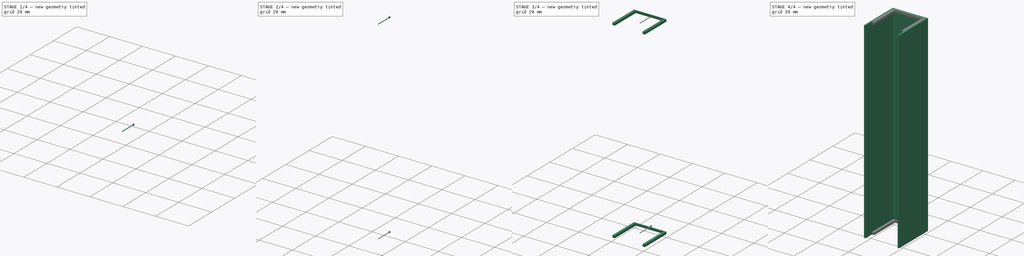
[diagram: build sequence overview — one tinted view per stage of 4, left to right]
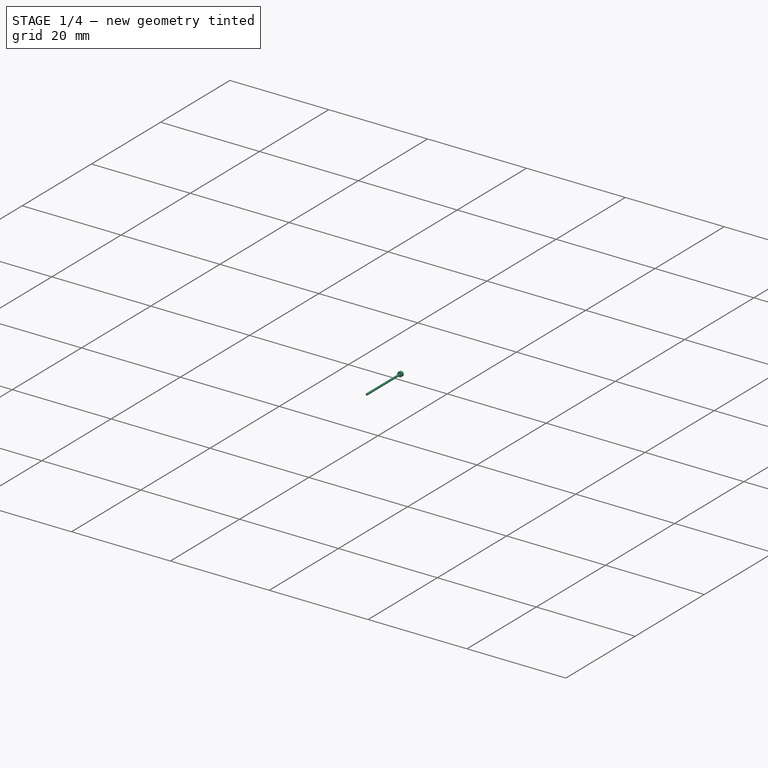
[diagram: stage 1 of 4 — iso view after this stage's code; geometry added in this stage tinted green]
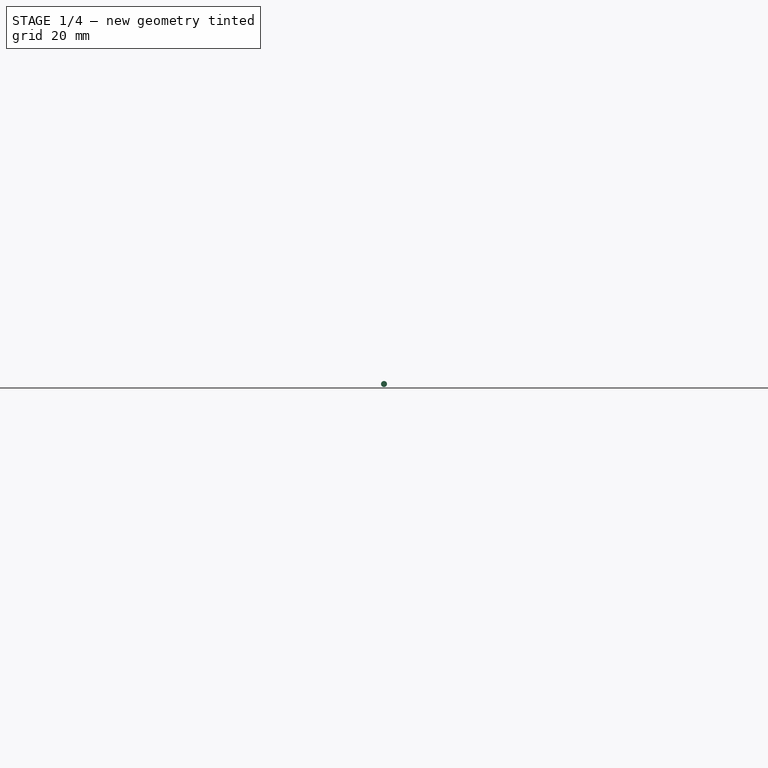
[diagram: stage 1 of 4 — front view after this stage's code; geometry added in this stage tinted green]
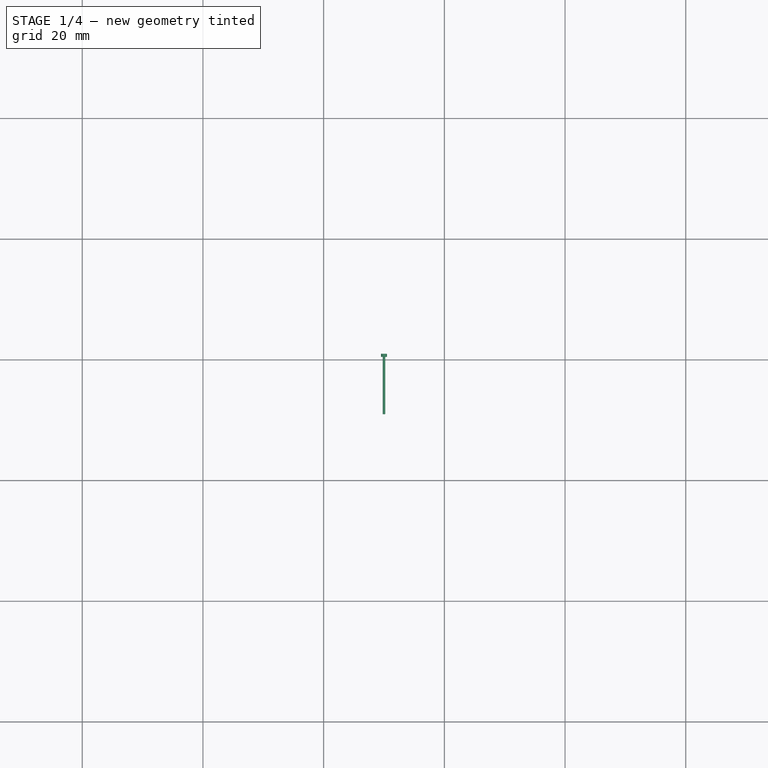
[diagram: stage 1 of 4 — top view after this stage's code; geometry added in this stage tinted green]
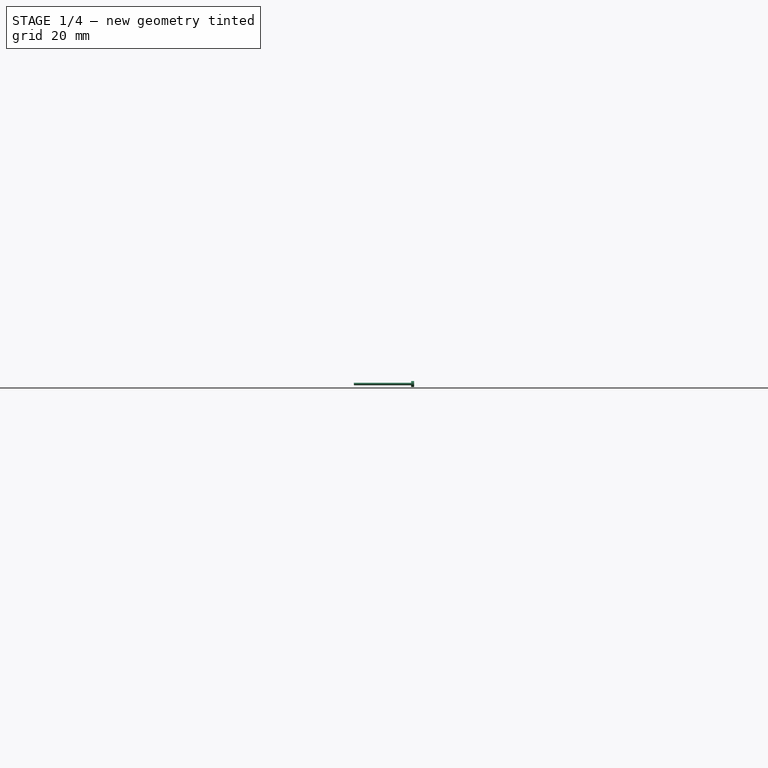
[diagram: stage 1 of 4 — right view after this stage's code; geometry added in this stage tinted green]
FCSTD DOCUMENT  (FreeCAD 0.17R13522 (Git))
Label: BaseRightSide
License: All rights reserved
LicenseURL: http://en.wikipedia.org/wiki/All_rights_reserved
objects: Part::MultiFuse×4, Part::Cylinder×4, Sketcher::SketchObject×3, PartDesign::Pad×3, Part::Cut×1
note: 18 computed .brp shape members not serialized (recipe doc carries the construction recipe); baked Part::Feature solids carry a one-line shape summary decoded from their .brp

FEATURE [Part::Cylinder] Cylinder
  Angle = 360
  AttacherType = Attacher::AttachEngine3D
  Height = 0.5
  Placement = pos=(0,3,0) rot=(0,0,1;0rad)
  Radius = 0.5
FEATURE [Part::Cylinder] Cylinder001
  Angle = 360
  AttacherType = Attacher::AttachEngine3D
  Height = 10
  Placement = pos=(0,3,0) rot=(0,0,1;0rad)
  Radius = 0.2
FEATURE [Part::MultiFuse] Fusion001  label="screwhole1"
  Placement = pos=(10,1,-1.5) rot=(1,0,0;1.5708rad)
  Shapes = -> [Cylinder001,Cylinder]
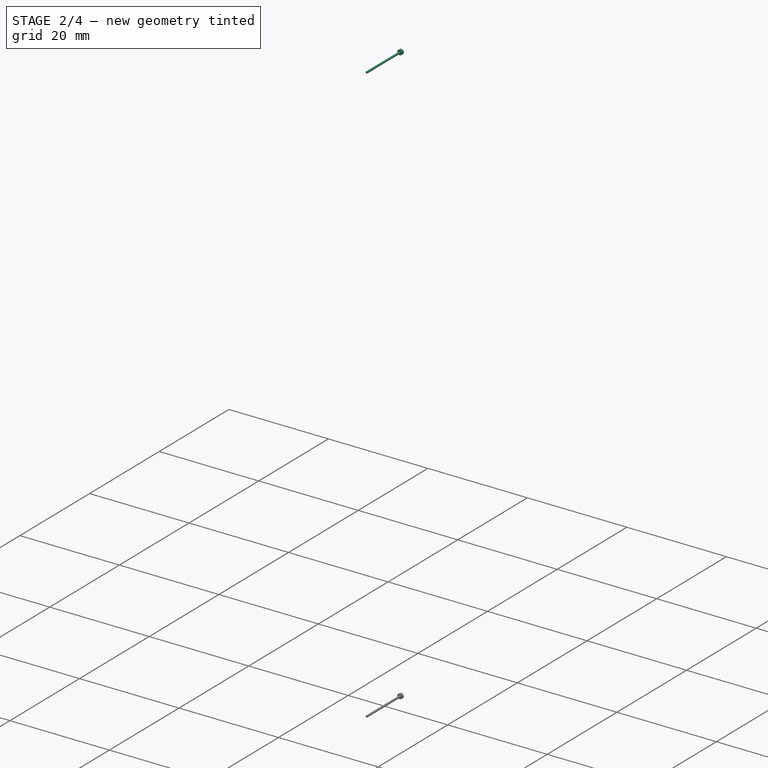
[diagram: stage 2 of 4 — iso view after this stage's code; geometry added in this stage tinted green]
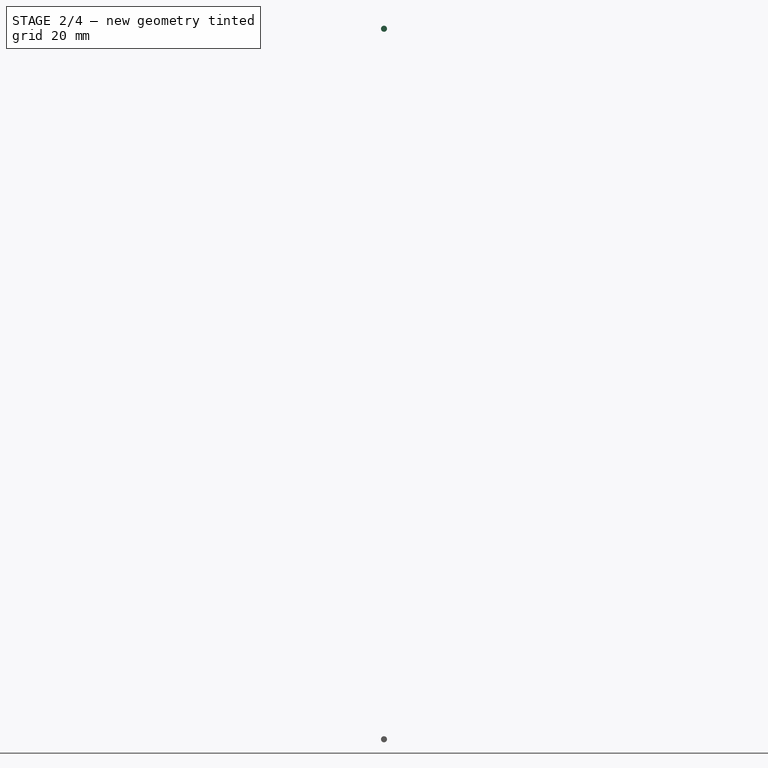
[diagram: stage 2 of 4 — front view after this stage's code; geometry added in this stage tinted green]
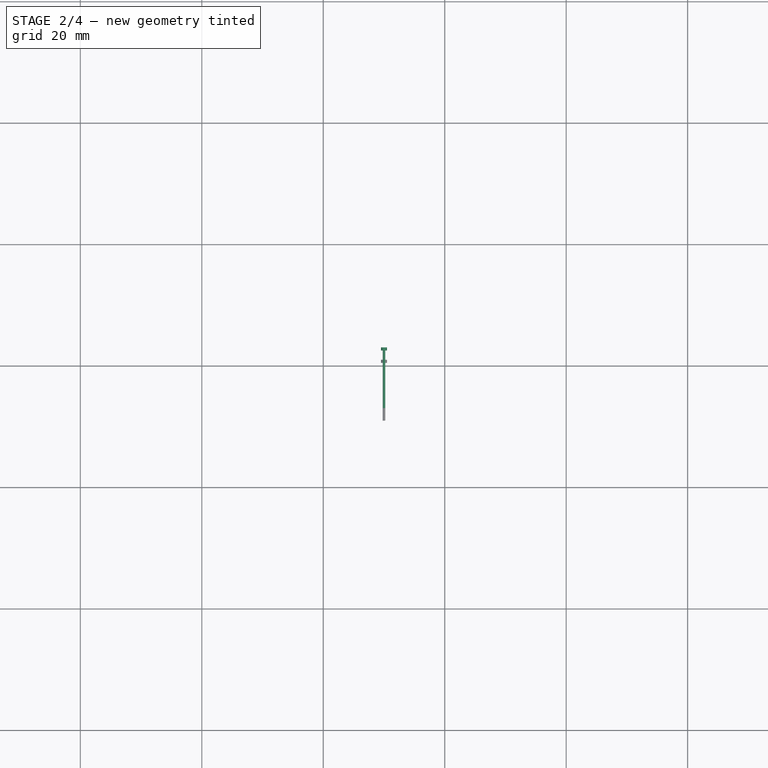
[diagram: stage 2 of 4 — top view after this stage's code; geometry added in this stage tinted green]
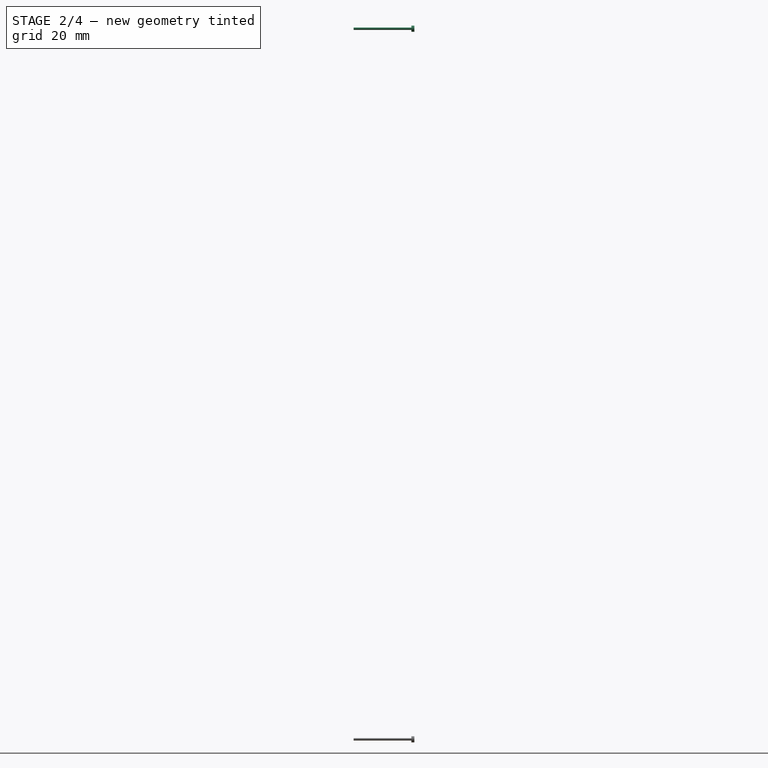
[diagram: stage 2 of 4 — right view after this stage's code; geometry added in this stage tinted green]
FEATURE [Part::Cylinder] Cylinder003
  Angle = 360
  AttacherType = Attacher::AttachEngine3D
  Height = 10
  Placement = pos=(0,3,0) rot=(0,0,1;0rad)
  Radius = 0.2
FEATURE [Part::Cylinder] Cylinder002
  Angle = 360
  AttacherType = Attacher::AttachEngine3D
  Height = 0.5
  Placement = pos=(0,3,0) rot=(0,0,1;0rad)
  Radius = 0.5
FEATURE [Part::MultiFuse] Fusion002  label="screwhole2"
  Placement = pos=(10,1,115.5) rot=(1,0,0;1.5708rad)
  Shapes = -> [Cylinder003,Cylinder002]
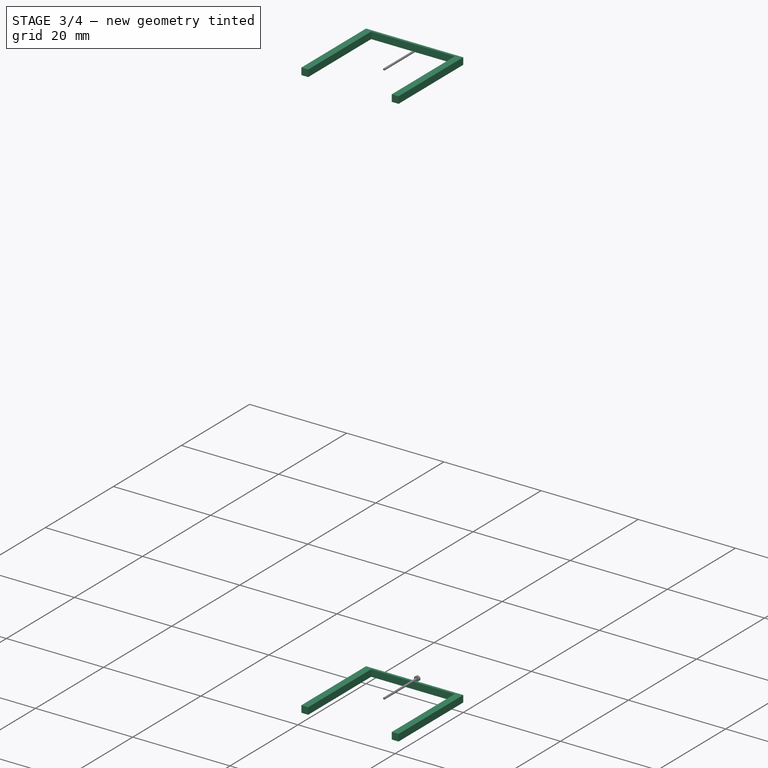
[diagram: stage 3 of 4 — iso view after this stage's code; geometry added in this stage tinted green]
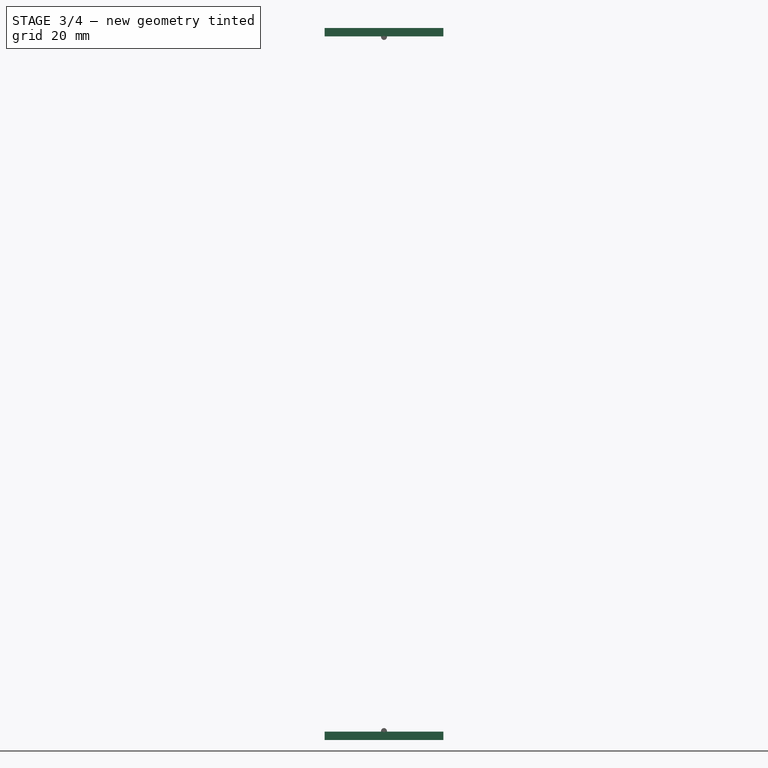
[diagram: stage 3 of 4 — front view after this stage's code; geometry added in this stage tinted green]
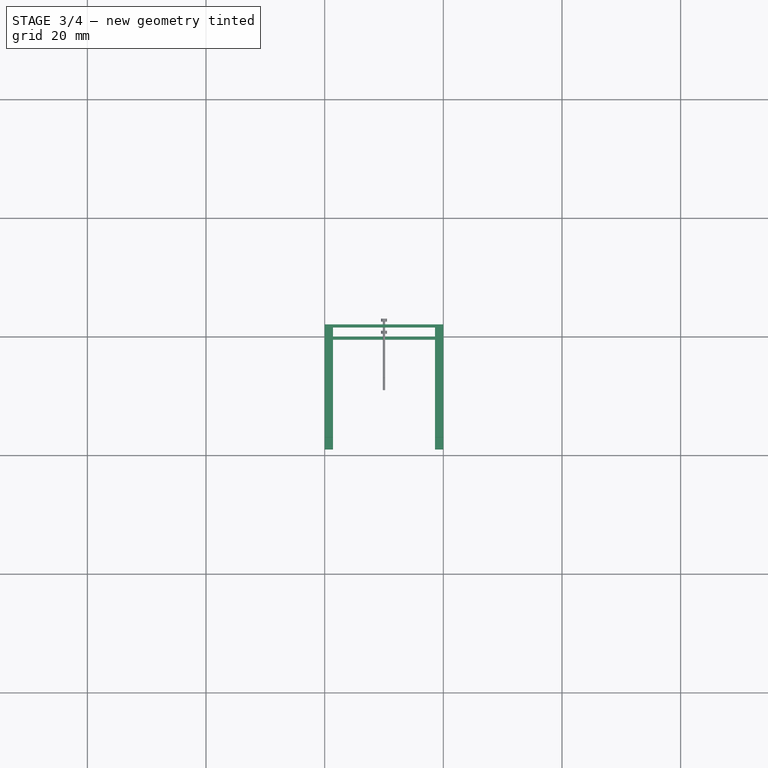
[diagram: stage 3 of 4 — top view after this stage's code; geometry added in this stage tinted green]
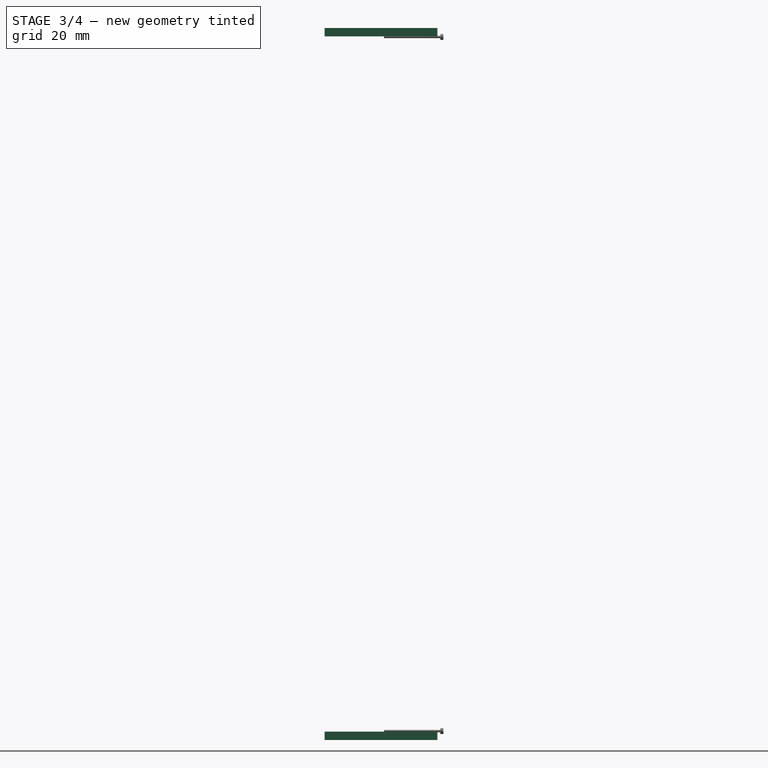
[diagram: stage 3 of 4 — right view after this stage's code; geometry added in this stage tinted green]
FEATURE [Sketcher::SketchObject] Sketch001
  MapMode = 5
  sketch-geometry (8):
    g0: LineSegment StartX=0 StartY=0 StartZ=0 EndX=20 EndY=0 EndZ=0
    g1: LineSegment StartX=20 StartY=0 StartZ=0 EndX=20 EndY=-19 EndZ=0
    g2: LineSegment StartX=20 StartY=-19 StartZ=0 EndX=18.6 EndY=-19 EndZ=0
    g3: LineSegment StartX=18.6 StartY=-19 StartZ=0 EndX=18.6 EndY=-0.5 EndZ=0
    g4: LineSegment StartX=18.6 StartY=-0.5 StartZ=0 EndX=1.4 EndY=-0.5 EndZ=0
    g5: LineSegment StartX=1.4 StartY=-0.5 StartZ=0 EndX=1.4 EndY=-19 EndZ=0
    g6: LineSegment StartX=1.4 StartY=-19 StartZ=0 EndX=0 EndY=-19 EndZ=0
    g7: LineSegment StartX=0 StartY=-19 StartZ=0 EndX=0 EndY=0 EndZ=0
  constraints (23):
    c: DistanceY(g3,g0) = 0.5
    c: DistanceX(g3,g0) = 1.4
    c: Coincident(g1,g0)
    c: Angle(g0,g1) = 1.5708
    c: Coincident(g3,g4)
    c: Horizontal(g0)
    c: Horizontal(g4)
    c: Vertical(g3)
    c: Coincident(g1,g2)
    c: Coincident(g3,g2)
    c: Coincident(g4,g5)
    c: Coincident(g0,g-1)
    c: Coincident(g7,g6)
    c: Coincident(g5,g6)
    c: Distance(g0) = 20
    c: Distance(g1) = 19
    c: Horizontal(g2)
    c: Horizontal(g6)
    c: Equal(g1,g7)
    c: Equal(g6,g2)
    c: Coincident(g-1,g7)
    c: Vertical(g7)
    c: Vertical(g5)
FEATURE [PartDesign::Pad] Pad001  label="lower_slide"
  Length = 1.4
  Length2 = 100
  Profile = -> Sketch001
  Type = 0
FEATURE [Sketcher::SketchObject] Sketch002
  MapMode = 5
  Placement = pos=(0,0,118.6) rot=(0,0,1;0rad)
  sketch-geometry (8):
    g0: LineSegment StartX=0 StartY=0 StartZ=0 EndX=20 EndY=0 EndZ=0
    g1: LineSegment StartX=20 StartY=0 StartZ=0 EndX=20 EndY=-19 EndZ=0
    g2: LineSegment StartX=20 StartY=-19 StartZ=0 EndX=18.6 EndY=-19 EndZ=0
    g3: LineSegment StartX=18.6 StartY=-19 StartZ=0 EndX=18.6 EndY=-0.5 EndZ=0
    g4: LineSegment StartX=18.6 StartY=-0.5 StartZ=0 EndX=1.4 EndY=-0.5 EndZ=0
    g5: LineSegment StartX=1.4 StartY=-0.5 StartZ=0 EndX=1.4 EndY=-19 EndZ=0
    g6: LineSegment StartX=1.4 StartY=-19 StartZ=0 EndX=0 EndY=-19 EndZ=0
    g7: LineSegment StartX=0 StartY=-19 StartZ=0 EndX=0 EndY=0 EndZ=0
  constraints (23):
    c: DistanceY(g3,g0) = 0.5
    c: DistanceX(g3,g0) = 1.4
    c: Coincident(g1,g0)
    c: Angle(g0,g1) = 1.5708
    c: Coincident(g3,g4)
    c: Horizontal(g0)
    c: Horizontal(g4)
    c: Vertical(g3)
    c: Coincident(g1,g2)
    c: Coincident(g3,g2)
    c: Coincident(g4,g5)
    c: Coincident(g0,g-1)
    c: Coincident(g7,g6)
    c: Coincident(g5,g6)
    c: Distance(g0) = 20
    c: Distance(g1) = 19
    c: Horizontal(g2)
    c: Horizontal(g6)
    c: Equal(g1,g7)
    c: Equal(g6,g2)
    c: Coincident(g-1,g7)
    c: Vertical(g7)
    c: Vertical(g5)
FEATURE [PartDesign::Pad] Pad002  label="upper_slide"
  Length = 1.4
  Length2 = 100
  Placement = pos=(0,0,118.6) rot=(0,0,1;0rad)
  Profile = -> Sketch002
  Type = 0
FEATURE [Part::MultiFuse] Fusion003  label="screws"
  Shapes = -> [Fusion001,Fusion002]
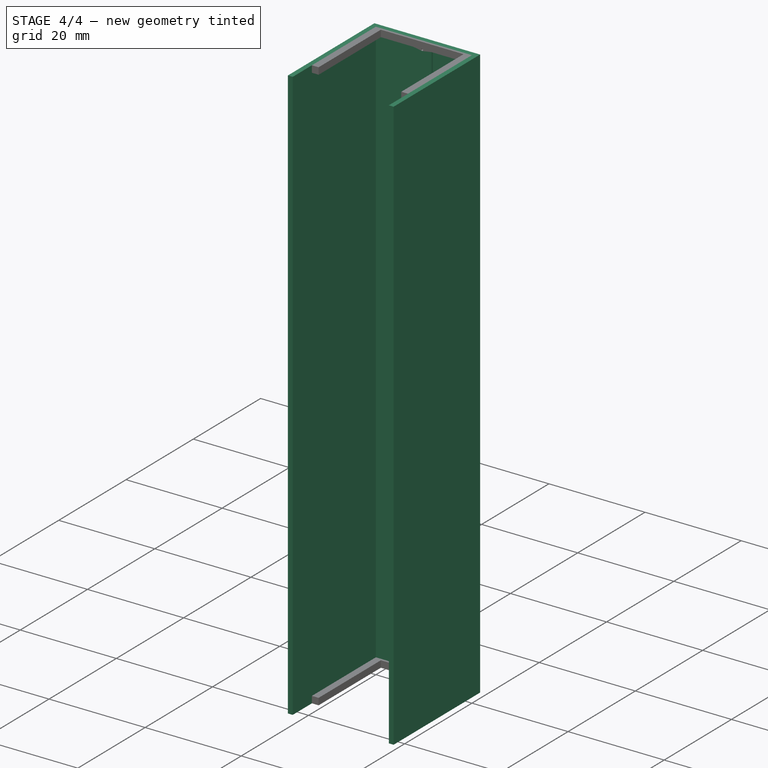
[diagram: stage 4 of 4 — iso view after this stage's code; geometry added in this stage tinted green]
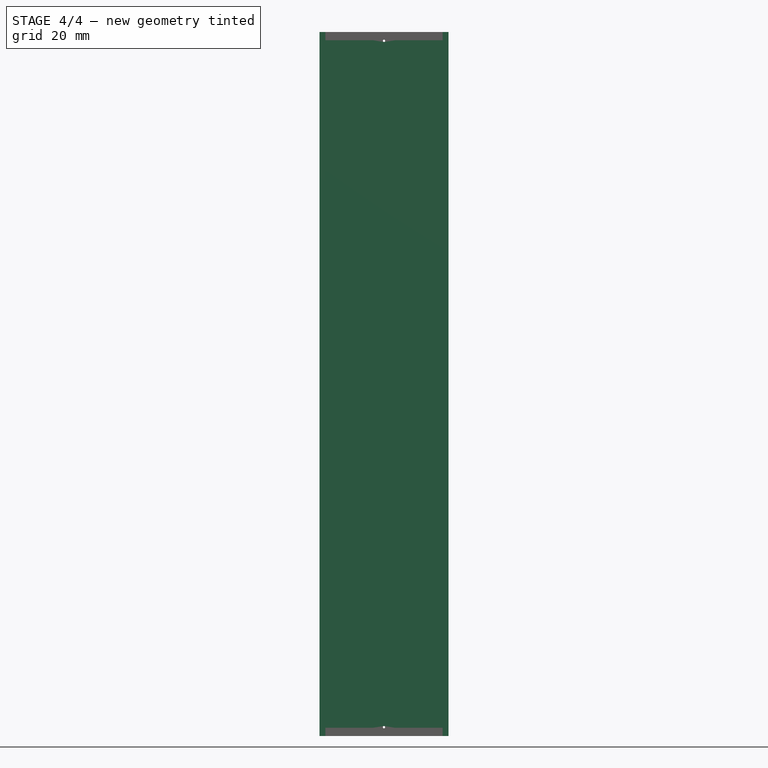
[diagram: stage 4 of 4 — front view after this stage's code; geometry added in this stage tinted green]
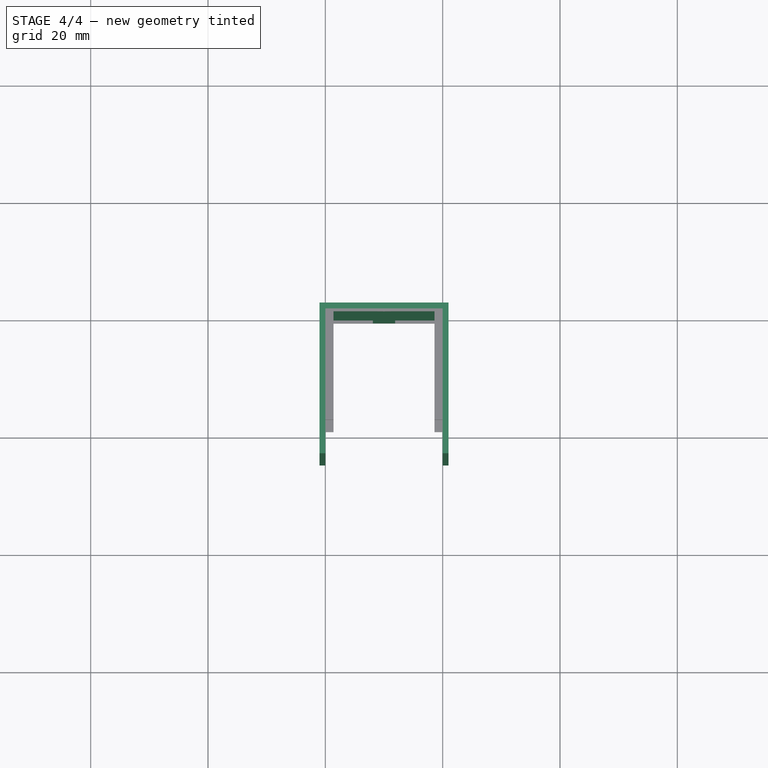
[diagram: stage 4 of 4 — top view after this stage's code; geometry added in this stage tinted green]
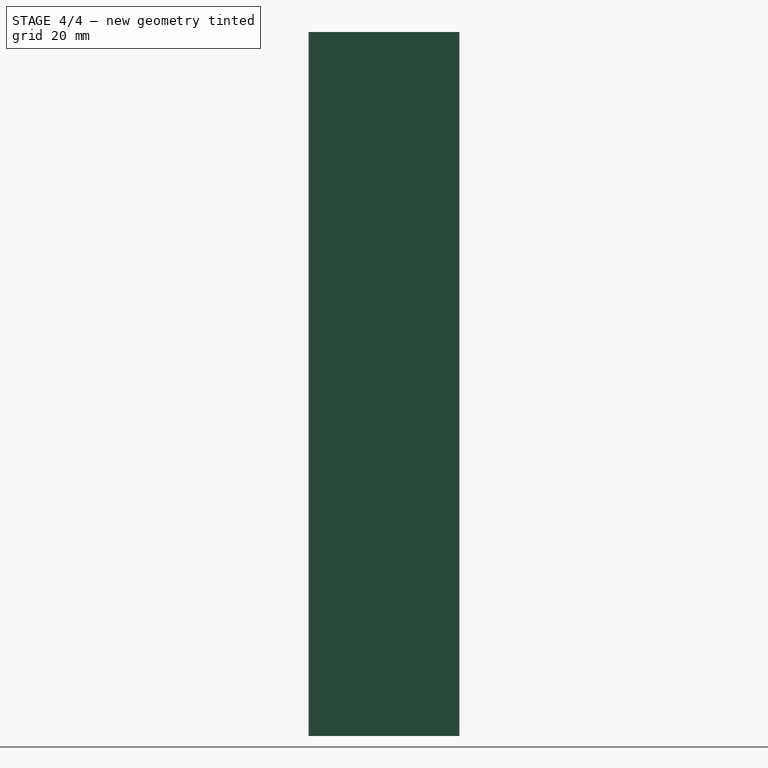
[diagram: stage 4 of 4 — right view after this stage's code; geometry added in this stage tinted green]
FEATURE [Sketcher::SketchObject] Sketch
  MapMode = 5
  sketch-geometry (12):
    g0: LineSegment StartX=-1 StartY=1 StartZ=0 EndX=21 EndY=1 EndZ=0
    g1: LineSegment StartX=21 StartY=1 StartZ=0 EndX=21 EndY=-24.7 EndZ=0
    g2: LineSegment StartX=21 StartY=-24.7 StartZ=0 EndX=20 EndY=-24.7 EndZ=0
    g3: LineSegment StartX=20 StartY=-24.7 StartZ=0 EndX=20 EndY=0 EndZ=0
    g4: LineSegment StartX=20 StartY=0 StartZ=0 EndX=11.9 EndY=0 EndZ=0
    g5: LineSegment StartX=11.9 StartY=0 StartZ=0 EndX=11.9 EndY=-0.5 EndZ=0
    g6: LineSegment StartX=11.9 StartY=-0.5 StartZ=0 EndX=8.1 EndY=-0.5 EndZ=0
    g7: LineSegment StartX=8.1 StartY=0 StartZ=0 EndX=0 EndY=0 EndZ=0
    g8: LineSegment StartX=0 StartY=0 StartZ=0 EndX=0 EndY=-24.7 EndZ=0
    g9: LineSegment StartX=-1 StartY=-24.7 StartZ=0 EndX=-1 EndY=1 EndZ=0
    g10: LineSegment StartX=8.1 StartY=0 StartZ=0 EndX=8.1 EndY=-0.5 EndZ=0
    g11: LineSegment StartX=-1 StartY=-24.7 StartZ=0 EndX=0 EndY=-24.7 EndZ=0
  constraints (35):
    c: Horizontal(g0)
    c: Coincident(g1,g0)
    c: Vertical(g1)
    c: Coincident(g2,g1)
    c: Horizontal(g2)
    c: Coincident(g3,g2)
    c: Vertical(g3)
    c: Coincident(g4,g3)
    c: Horizontal(g4)
    c: Coincident(g5,g4)
    c: Vertical(g5)
    c: Coincident(g6,g5)
    c: Horizontal(g6)
    c: Horizontal(g7)
    c: Coincident(g8,g7)
    c: Vertical(g8)
    c: Coincident(g9,g0)
    c: Vertical(g9)
    c: DistanceY(g3,g0) = 1
    c: DistanceX(g3,g0) = 1
    c: Distance(g0) = 22
    c: Distance(g4) = 8.1
    c: Distance(g6) = 3.8
    c: DistanceY(g5,g5) = 0.5
    c: Equal(g1,g9)
    c: Equal(g3,g8)
    c: Equal(g4,g7)
    c: Coincident(g10,g7)
    c: Coincident(g10,g6)
    c: Vertical(g10)
    c: Equal(g10,g5)
    c: Coincident(g11,g9)
    c: Coincident(g11,g8)
    c: Coincident(g-1,g7)
    c: Distance(g3) = 24.7
FEATURE [PartDesign::Pad] Pad  label="Outerform"
  Length = 120
  Length2 = 100
  Profile = -> Sketch
  Type = 0
FEATURE [Part::MultiFuse] Fusion  label="Shell"
  Shapes = -> [Pad001,Pad,Pad002]
FEATURE [Part::Cut] Cut  label="ShellwithHoles"
  Base = -> Fusion
  Tool = -> Fusion003
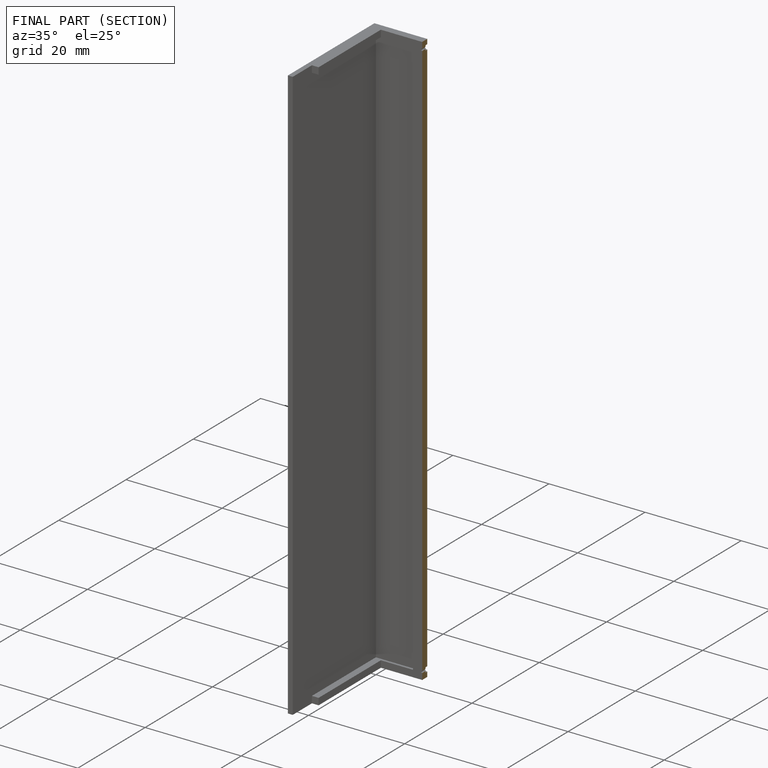
[diagram: finished part — half-section view (interior)]
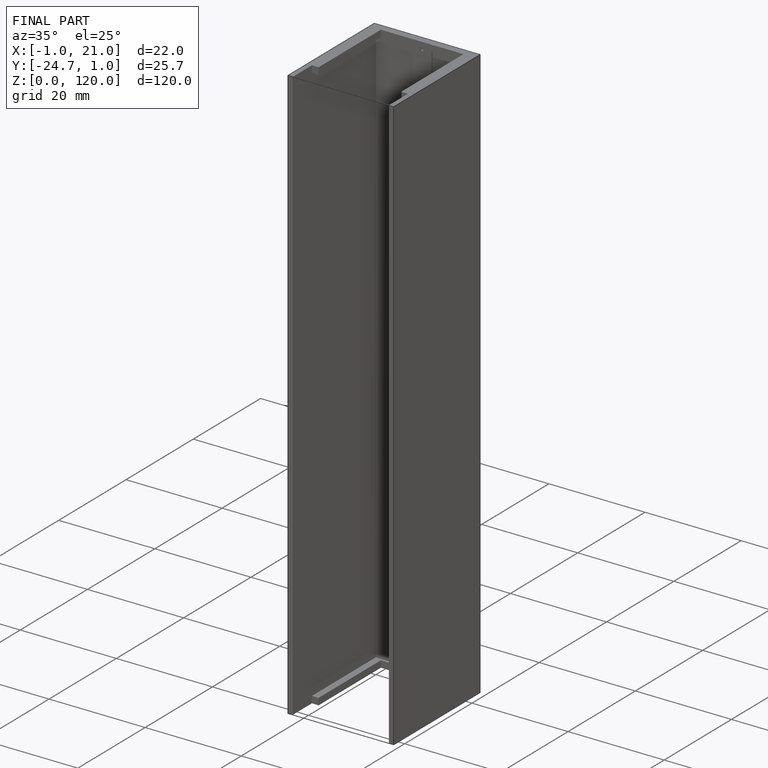
[diagram: finished part — iso view with bounding-box wireframe]
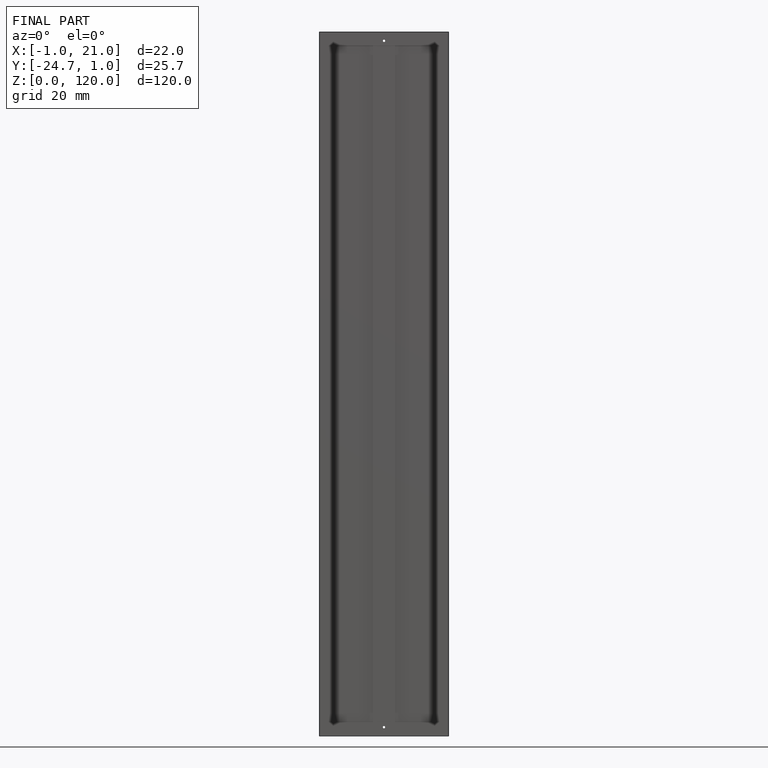
[diagram: finished part — front view with bounding-box wireframe]
